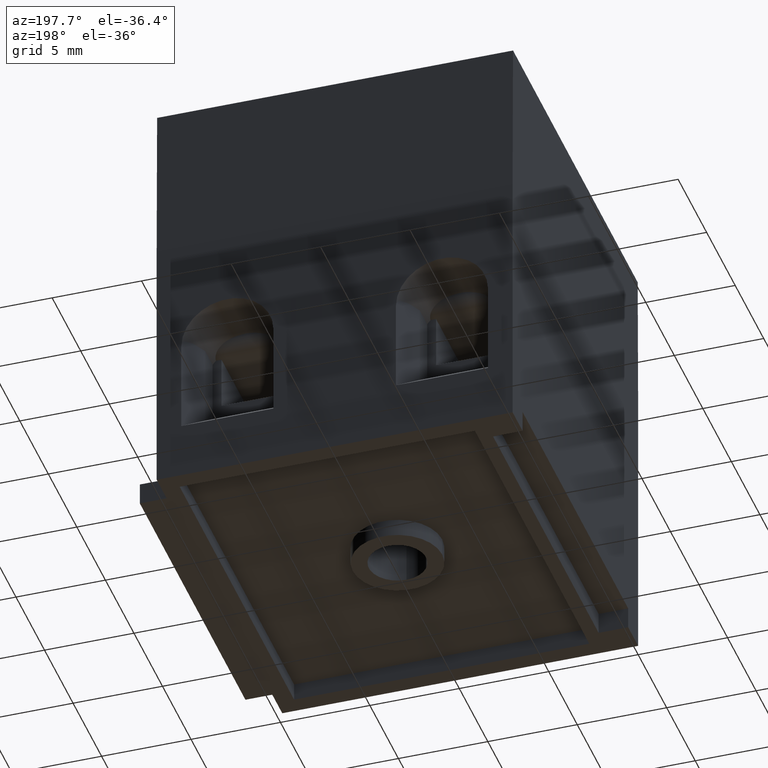
[diagram: clean part render]
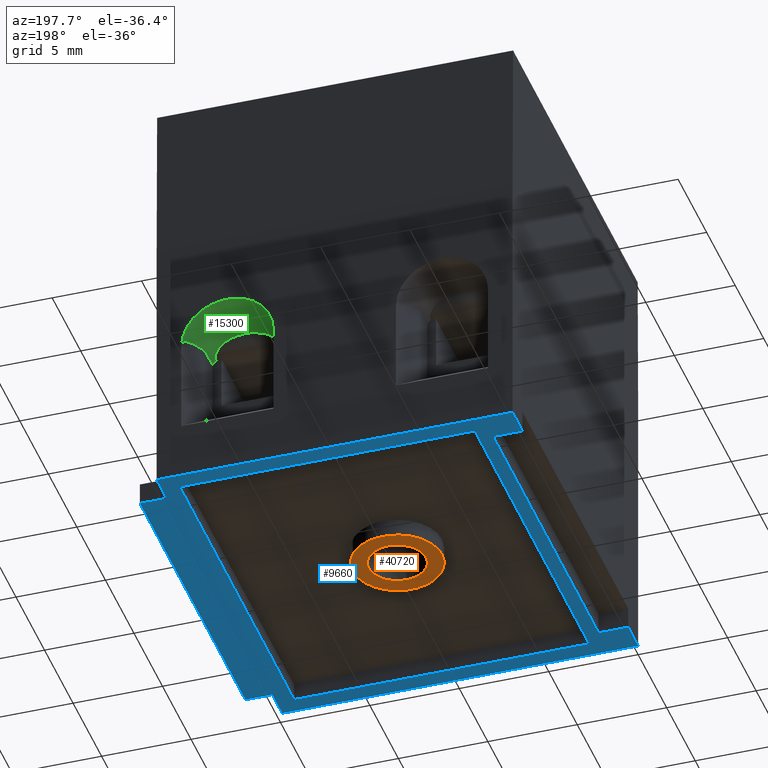
[diagram: same view with three faces highlighted in distinct colors, each labeled with its STEP entity id]
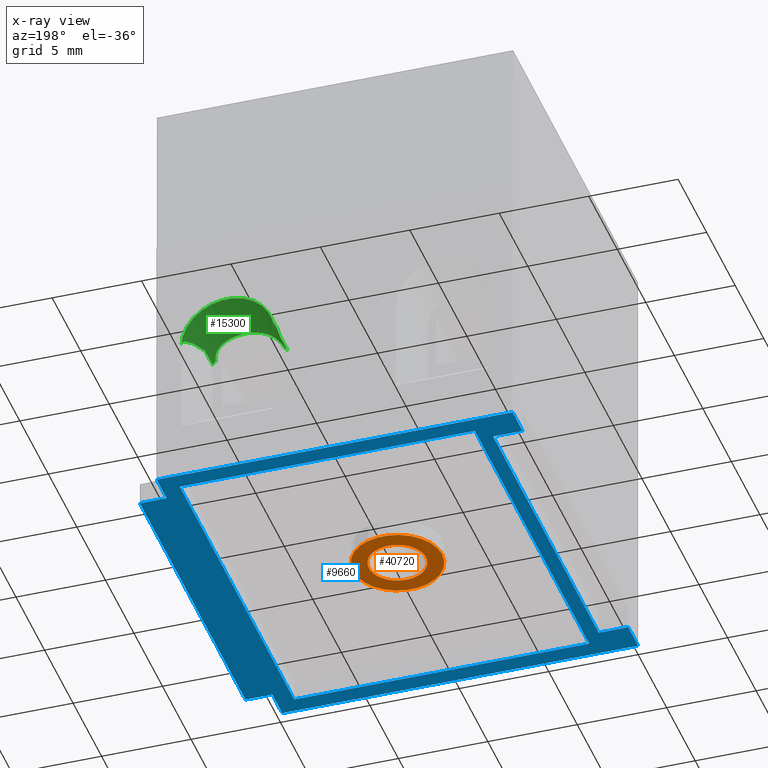
[diagram: x-ray of the same camera — body ghosted, the three highlighted faces saturated]
A machine part, auxiliary view with three faces highlighted in distinct colors.
The next image is the same camera in x-ray (body ghosted, the three faces saturated) — at least one of them is partly hidden behind the body in this view.
Their STEP definitions:

[orange] entity #40720 — the highlighted planar face has unit normal (0, 0, 1).
#8700=CARTESIAN_POINT('',(60.404081,0.156191,19.95));
#8710=DIRECTION('',(1.11022302462516E-16,1.,0.));
#8720=DIRECTION('',(1.,-1.11022302462516E-16,0.));
#8730=AXIS2_PLACEMENT_3D('',#8700,#8710,#8720);
#8740=PLANE('',#8730);
#40220=CARTESIAN_POINT('',(47.804081,0.156191000000002,10.0000000000001)
);
#40230=VERTEX_POINT('',#40220);
#40260=CARTESIAN_POINT('',(49.404081,0.156191000000002,10.0000000000001)
);
#40270=DIRECTION('',(-1.11022302462516E-16,-1.,-4.62223186652936E-33));
#40280=DIRECTION('',(-1.,1.11022302462516E-16,-4.16333634234434E-17));
#40290=AXIS2_PLACEMENT_3D('',#40260,#40270,#40280);
#40300=CIRCLE('',#40290,1.6);
#40310=CARTESIAN_POINT('',(51.004081,0.156191000000001,10.0000000000001)
);
#40320=VERTEX_POINT('',#40310);
#40330=EDGE_CURVE('',#40320,#40230,#40300,.T.);
#40520=CARTESIAN_POINT('',(49.404081,0.156191000000002,10.));
#40530=DIRECTION('',(1.11022302462516E-16,1.,4.62223186652936E-33));
#40540=DIRECTION('',(-4.16333634234434E-17,-1.3684555315672E-48,1.));
#40550=AXIS2_PLACEMENT_3D('',#40520,#40530,#40540);
#40560=CIRCLE('',#40550,2.5);
#40570=CARTESIAN_POINT('',(49.404081,0.156191000000002,12.5));
#40580=VERTEX_POINT('',#40570);
#40590=CARTESIAN_POINT('',(49.404081,0.156191000000002,7.50000000000005)
);
#40600=VERTEX_POINT('',#40590);
#40610=EDGE_CURVE('',#40580,#40600,#40560,.T.);
#40620=ORIENTED_EDGE('',*,*,#40610,.F.);
#40630=EDGE_CURVE('',#40600,#40580,#40560,.T.);
#40640=ORIENTED_EDGE('',*,*,#40630,.F.);
#40650=EDGE_LOOP('',(#40640,#40620));
#40660=FACE_OUTER_BOUND('',#40650,.T.);
#40670=EDGE_CURVE('',#40230,#40320,#40300,.T.);
#40680=ORIENTED_EDGE('',*,*,#40670,.F.);
#40690=ORIENTED_EDGE('',*,*,#40330,.F.);
#40700=EDGE_LOOP('',(#40690,#40680));
#40710=FACE_BOUND('',#40700,.T.);
#40720=ADVANCED_FACE('',(#40660,#40710),#8740,.F.);

[blue] entity #9660 — the highlighted planar face has unit normal (0, 0, 1).
#60=CARTESIAN_POINT('',(49.7916584671174,0.156191000000002,
0.0499999999999936));
#70=DIRECTION('',(-1.,1.11022302462516E-16,0.));
#80=VECTOR('',#70,1.);
#90=LINE('',#60,#80);
#100=CARTESIAN_POINT('',(40.154081,0.156191000000003,0.0499999999999936)
);
#110=VERTEX_POINT('',#100);
#120=CARTESIAN_POINT('',(38.4040807462834,0.156191000000002,
0.0499999999999936));
#130=VERTEX_POINT('',#120);
#140=EDGE_CURVE('',#110,#130,#90,.T.);
#360=CARTESIAN_POINT('',(58.654081,0.156191,0.0499999999999936));
#370=VERTEX_POINT('',#360);
#400=CARTESIAN_POINT('',(60.404081,0.156191,0.0499999999999936));
#410=VERTEX_POINT('',#400);
#420=EDGE_CURVE('',#410,#370,#90,.T.);
#1010=CARTESIAN_POINT('',(38.4040807462834,0.156191000000002,19.95));
#1020=VERTEX_POINT('',#1010);
#1350=CARTESIAN_POINT('',(60.404081,0.156191,19.95));
#1360=VERTEX_POINT('',#1350);
#1390=CARTESIAN_POINT('',(49.7916584671174,0.156191000000002,19.95));
#1400=DIRECTION('',(-1.,1.11022302462516E-16,0.));
#1410=VECTOR('',#1400,1.);
#1420=LINE('',#1390,#1410);
#1430=CARTESIAN_POINT('',(58.654081,0.156191,19.95));
#1440=VERTEX_POINT('',#1430);
#1450=EDGE_CURVE('',#1360,#1440,#1420,.T.);
#1670=CARTESIAN_POINT('',(40.154081,0.156191000000002,19.95));
#1680=VERTEX_POINT('',#1670);
#1710=EDGE_CURVE('',#1680,#1020,#1420,.T.);
#8470=CARTESIAN_POINT('',(38.4040807462834,0.156191000000003,19.95));
#8480=DIRECTION('',(0.,0.,-1.));
#8490=VECTOR('',#8480,1.);
#8500=LINE('',#8470,#8490);
#8510=EDGE_CURVE('',#1020,#130,#8500,.T.);
#8700=CARTESIAN_POINT('',(60.404081,0.156191,19.95));
#8710=DIRECTION('',(1.11022302462516E-16,1.,0.));
#8720=DIRECTION('',(1.,-1.11022302462516E-16,0.));
#8730=AXIS2_PLACEMENT_3D('',#8700,#8710,#8720);
#8740=PLANE('',#8730);
#8750=CARTESIAN_POINT('',(59.4302669215692,0.156190999999998,19.95));
#8760=DIRECTION('',(-4.16333634234434E-17,3.08148791101958E-33,1.));
#8770=VECTOR('',#8760,1.);
#8780=LINE('',#8750,#8770);
#8790=CARTESIAN_POINT('',(59.4302669215692,0.156191,2.47381407843087));
#8800=VERTEX_POINT('',#8790);
#8810=CARTESIAN_POINT('',(59.4302669215692,0.156190999999998,
18.9761859215692));
#8820=VERTEX_POINT('',#8810);
#8830=EDGE_CURVE('',#8800,#8820,#8780,.T.);
#8840=ORIENTED_EDGE('',*,*,#8830,.F.);
#8850=CARTESIAN_POINT('',(49.404081,0.156191000000002,18.9761859215692))
;
#8860=DIRECTION('',(-1.,1.11022302462516E-16,-4.16333634234434E-17));
#8870=VECTOR('',#8860,1.);
#8880=LINE('',#8850,#8870);
#8890=CARTESIAN_POINT('',(39.3778950784308,0.156191000000002,
18.9761859215692));
#8900=VERTEX_POINT('',#8890);
#8910=EDGE_CURVE('',#8820,#8900,#8880,.T.);
#8920=ORIENTED_EDGE('',*,*,#8910,.F.);
#8930=CARTESIAN_POINT('',(39.3778950784308,0.156191000000002,19.95));
#8940=DIRECTION('',(4.16333634234434E-17,-3.08148791101958E-33,-1.));
#8950=VECTOR('',#8940,1.);
#8960=LINE('',#8930,#8950);
#8970=CARTESIAN_POINT('',(39.3778950784308,0.156191000000002,
2.47381407843086));
#8980=VERTEX_POINT('',#8970);
#8990=EDGE_CURVE('',#8900,#8980,#8960,.T.);
#9000=ORIENTED_EDGE('',*,*,#8990,.F.);
#9010=CARTESIAN_POINT('',(49.404081,0.156191000000002,2.47381407843087))
;
#9020=DIRECTION('',(1.,-1.11022302462516E-16,4.16333634234433E-17));
#9030=VECTOR('',#9020,1.);
#9040=LINE('',#9010,#9030);
#9050=EDGE_CURVE('',#8980,#8800,#9040,.T.);
#9060=ORIENTED_EDGE('',*,*,#9050,.F.);
#9070=EDGE_LOOP('',(#9060,#9000,#8920,#8840));
#9080=FACE_BOUND('',#9070,.T.);
#9090=ORIENTED_EDGE('',*,*,#1710,.T.);
#9100=CARTESIAN_POINT('',(40.154081,0.156191000000002,21.45));
#9110=DIRECTION('',(0.,0.,-1.));
#9120=VECTOR('',#9110,1.);
#9130=LINE('',#9100,#9120);
#9140=CARTESIAN_POINT('',(40.154081,0.156191000000002,21.45));
#9150=VERTEX_POINT('',#9140);
#9160=EDGE_CURVE('',#9150,#1680,#9130,.T.);
#9170=ORIENTED_EDGE('',*,*,#9160,.T.);
#9180=CARTESIAN_POINT('',(92.1701858007928,0.156190999999996,21.45));
#9190=DIRECTION('',(-1.,1.11022302462516E-16,0.));
#9200=VECTOR('',#9190,1.);
#9210=LINE('',#9180,#9200);
#9220=CARTESIAN_POINT('',(58.654081,0.156191,21.45));
#9230=VERTEX_POINT('',#9220);
#9240=EDGE_CURVE('',#9230,#9150,#9210,.T.);
#9250=ORIENTED_EDGE('',*,*,#9240,.T.);
#9260=CARTESIAN_POINT('',(58.654081,0.156191,21.45));
#9270=DIRECTION('',(0.,0.,-1.));
#9280=VECTOR('',#9270,1.);
#9290=LINE('',#9260,#9280);
#9300=EDGE_CURVE('',#9230,#1440,#9290,.T.);
#9310=ORIENTED_EDGE('',*,*,#9300,.F.);
#9320=ORIENTED_EDGE('',*,*,#1450,.T.);
#9330=CARTESIAN_POINT('',(60.404081,0.156191,19.95));
#9340=DIRECTION('',(0.,0.,-1.));
#9350=VECTOR('',#9340,1.);
#9360=LINE('',#9330,#9350);
#9370=EDGE_CURVE('',#1360,#410,#9360,.T.);
#9380=ORIENTED_EDGE('',*,*,#9370,.F.);
#9390=ORIENTED_EDGE('',*,*,#420,.F.);
#9400=CARTESIAN_POINT('',(58.654081,0.156191,19.95));
#9410=DIRECTION('',(0.,0.,1.));
#9420=VECTOR('',#9410,1.);
#9430=LINE('',#9400,#9420);
#9440=CARTESIAN_POINT('',(58.654081,0.156191,1.70000000000001));
#9450=VERTEX_POINT('',#9440);
#9460=EDGE_CURVE('',#370,#9450,#9430,.T.);
#9470=ORIENTED_EDGE('',*,*,#9460,.F.);
#9480=CARTESIAN_POINT('',(49.404081,0.156191000000002,1.70000000000001))
;
#9490=DIRECTION('',(1.,-1.11022302462516E-16,0.));
#9500=VECTOR('',#9490,1.);
#9510=LINE('',#9480,#9500);
#9520=CARTESIAN_POINT('',(40.154081,0.156191000000003,1.70000000000001))
;
#9530=VERTEX_POINT('',#9520);
#9540=EDGE_CURVE('',#9530,#9450,#9510,.T.);
#9550=ORIENTED_EDGE('',*,*,#9540,.T.);
#9560=CARTESIAN_POINT('',(40.154081,0.156191000000003,19.95));
#9570=DIRECTION('',(0.,0.,-1.));
#9580=VECTOR('',#9570,1.);
#9590=LINE('',#9560,#9580);
#9600=EDGE_CURVE('',#9530,#110,#9590,.T.);
#9610=ORIENTED_EDGE('',*,*,#9600,.F.);
#9620=ORIENTED_EDGE('',*,*,#140,.F.);
#9630=ORIENTED_EDGE('',*,*,#8510,.T.);
#9640=EDGE_LOOP('',(#9630,#9620,#9610,#9550,#9470,#9390,#9380,#9320,
#9310,#9250,#9170,#9090));
#9650=FACE_OUTER_BOUND('',#9640,.T.);
#9660=ADVANCED_FACE('',(#9080,#9650),#8740,.F.);

[green] entity #15300 — the highlighted cylindrical surface (partial cylindrical patch) has radius 2.575 mm, axis along (0, -1, 0).
#10900=CARTESIAN_POINT('',(60.404081,8.65751798070847,18.575));
#10910=VERTEX_POINT('',#10900);
#11060=CARTESIAN_POINT('',(60.404081,8.65751798070847,13.425));
#11070=VERTEX_POINT('',#11060);
#11100=CARTESIAN_POINT('',(60.404081,8.65751798070847,16.));
#11110=DIRECTION('',(-1.,0.,0.));
#11120=DIRECTION('',(0.,0.,-1.));
#11130=AXIS2_PLACEMENT_3D('',#11100,#11110,#11120);
#11140=CIRCLE('',#11130,2.57499999999999);
#11150=EDGE_CURVE('',#10910,#11070,#11140,.T.);
#11780=CARTESIAN_POINT('',(45.8005303144844,8.65751798070847,16.));
#11790=DIRECTION('',(-0.17364817766693,0.,0.984807753012208));
#11800=DIRECTION('',(0.984807753012208,0.,0.17364817766693));
#11810=AXIS2_PLACEMENT_3D('',#11780,#11790,#11800);
#11820=ELLIPSE('',#11810,14.8288339940948,2.57499999999999);
#11830=CARTESIAN_POINT('',(57.7102221356815,10.1476941447911,18.1));
#11840=VERTEX_POINT('',#11830);
#11850=EDGE_CURVE('',#10910,#11840,#11820,.T.);
#12480=CARTESIAN_POINT('',(45.8005303144844,8.65751798070847,16.));
#12490=DIRECTION('',(0.17364817766693,0.,0.984807753012208));
#12500=DIRECTION('',(0.984807753012208,0.,-0.17364817766693));
#12510=AXIS2_PLACEMENT_3D('',#12480,#12490,#12500);
#12520=ELLIPSE('',#12510,14.8288339940948,2.57499999999999);
#12530=CARTESIAN_POINT('',(57.7102221356816,10.1476941447911,13.9));
#12540=VERTEX_POINT('',#12530);
#12550=EDGE_CURVE('',#11070,#12540,#12520,.T.);
#12750=CARTESIAN_POINT('',(60.404081,8.65751798070847,16.));
#12760=DIRECTION('',(-1.,0.,0.));
#12770=DIRECTION('',(0.,0.,-1.));
#12780=AXIS2_PLACEMENT_3D('',#12750,#12760,#12770);
#12790=CYLINDRICAL_SURFACE('',#12780,2.57499999999999);
#12800=CARTESIAN_POINT('',(56.354081,11.1793287549614,16.));
#12810=DIRECTION('',(3.44892722976232E-15,0.,-1.));
#12820=DIRECTION('',(-1.,0.,-3.44892722976232E-15));
#12830=AXIS2_PLACEMENT_3D('',#12800,#12810,#12820);
#12840=CYLINDRICAL_SURFACE('',#12830,0.800000000000001);
#12850=CARTESIAN_POINT('',(57.154081,11.1793287549614,16.5206682426092))
;
#12860=CARTESIAN_POINT('',(57.154081,11.1837366377855,16.4993190503833))
;
#12870=CARTESIAN_POINT('',(57.1540447072863,11.1878703751275,
16.4779283114559));
#12880=CARTESIAN_POINT('',(57.1539848910586,11.1917289593654,
16.4565081769857));
#12890=CARTESIAN_POINT('',(57.1539250874562,11.1955867291848,
16.4350925635916));
#12900=CARTESIAN_POINT('',(57.1538416477542,11.199176484276,
16.413608842397));
#12910=CARTESIAN_POINT('',(57.1537454892324,11.2024956421225,
16.3920633914348));
#12920=CARTESIAN_POINT('',(57.1535531745922,11.2091338748482,
16.3489730280724));
#12930=CARTESIAN_POINT('',(57.1533116017036,11.2146884290971,
16.305640166577));
#12940=CARTESIAN_POINT('',(57.1530898261341,11.2191395042607,
16.2621453224335));
#12950=CARTESIAN_POINT('',(57.1528680510169,11.2235905703463,
16.2186505669989));
#12960=CARTESIAN_POINT('',(57.1526662221688,11.2269380514238,
16.1749944773527));
#12970=CARTESIAN_POINT('',(57.1525268806131,11.2291702610771,
16.1312613761724));
#12980=CARTESIAN_POINT('',(57.1523875391732,11.2314024688778,
16.0875283112879));
#12990=CARTESIAN_POINT('',(57.1523107668274,11.2325193495488,
16.0437189814536));
#13000=CARTESIAN_POINT('',(57.1523108581226,11.2325179794486,
15.9999194510077));
#13010=CARTESIAN_POINT('',(57.1523109494178,11.2325166093479,
15.9561199025114));
#13020=CARTESIAN_POINT('',(57.152387895257,11.2313969949483,
15.9123309416493));
#13030=CARTESIAN_POINT('',(57.1525272009373,11.2291651293155,
15.8686381217349));
#13040=CARTESIAN_POINT('',(57.1526665068713,11.2269332596179,
15.8249452222445));
#13050=CARTESIAN_POINT('',(57.1528680741815,11.2235892113222,
15.7813492277402));
#13060=CARTESIAN_POINT('',(57.1530894281517,11.2191474910353,
15.7379327341639));
#13070=CARTESIAN_POINT('',(57.1533108477627,11.2147044535922,
15.6945033657788));
#13080=CARTESIAN_POINT('',(57.1535516558213,11.2091715152921,
15.6513090040395));
#13090=CARTESIAN_POINT('',(57.1537439967809,11.2025471007099,
15.6082707844126));
#13100=CARTESIAN_POINT('',(57.153936474473,11.1959179769258,
15.565201969529));
#13110=CARTESIAN_POINT('',(57.1540810000001,11.1881771017332,
15.5221879456451));
#13120=CARTESIAN_POINT('',(57.1540810000001,11.1793287549614,
15.4793317573908));
#13130=B_SPLINE_CURVE_WITH_KNOTS('',3,(#12850,#12860,#12870,#12880,
#12890,#12900,#12910,#12920,#12930,#12940,#12950,#12960,#12970,#12980,
#12990,#13000,#13010,#13020,#13030,#13040,#13050,#13060,#13070,#13080,
#13090,#13100,#13110,#13120),.UNSPECIFIED.,.F.,.F.,(4,3,3,3,3,3,3,3,3,4)
,(0.,0.0653492173987913,0.130689398047593,0.261685022357758,
0.392968221668058,0.524367293166116,0.655705900215617,0.786810000849483,
0.917545972419453,1.04857348763316),.UNSPECIFIED.);
#13140=SURFACE_CURVE('',#13130,(#12790,#12840),.CURVE_3D.);
#13150=CARTESIAN_POINT('',(57.154081,11.1793287549614,16.5206682426092))
;
#13160=VERTEX_POINT('',#13150);
#13170=CARTESIAN_POINT('',(57.154081,11.1793287549614,15.4793317573908))
;
#13180=VERTEX_POINT('',#13170);
#13190=EDGE_CURVE('',#13160,#13180,#13140,.T.);
#13200=ORIENTED_EDGE('',*,*,#13190,.T.);
#13210=CARTESIAN_POINT('',(56.404081,10.3808927838278,17.9132705736443))
;
#13220=CARTESIAN_POINT('',(56.4135692186894,10.3814869591301,
17.9127353713793));
#13230=CARTESIAN_POINT('',(56.4229977295525,10.3822464989184,
17.9120507573723));
#13240=CARTESIAN_POINT('',(56.4324199884119,10.3831736175073,
17.9112136518936));
#13250=CARTESIAN_POINT('',(56.4418429532056,10.3841008055578,
17.9103764836973));
#13260=CARTESIAN_POINT('',(56.4512538403485,10.3851958270849,
17.9093865915302));
#13270=CARTESIAN_POINT('',(56.4606387853886,10.3864571144211,
17.9082438187813));
#13280=CARTESIAN_POINT('',(56.4785328501298,10.3888619827666,
17.9060649195478));
#13290=CARTESIAN_POINT('',(56.4963315431997,10.3918723766231,
17.9033295821574));
#13300=CARTESIAN_POINT('',(56.5139348895336,10.3954622267814,
17.9000459987963));
#13310=CARTESIAN_POINT('',(56.5315381152369,10.3990520523395,
17.8967624379367));
#13320=CARTESIAN_POINT('',(56.5489429520399,10.4032207443429,
17.892931047424));
#13330=CARTESIAN_POINT('',(56.5660520718812,10.4079220757801,
17.8885736691897));
#13340=CARTESIAN_POINT('',(56.5831613027906,10.4126234377372,
17.8842162626684));
#13350=CARTESIAN_POINT('',(56.5999719832796,10.4178565134608,
17.8793335598289));
#13360=CARTESIAN_POINT('',(56.6163988681358,10.4235580648333,
17.873960357442));
#13370=CARTESIAN_POINT('',(56.6328363003603,10.4292632770558,
17.8685837050313));
#13380=CARTESIAN_POINT('',(56.6488440828912,10.4354184431455,
17.8627340964681));
#13390=CARTESIAN_POINT('',(56.6644804690675,10.4420010329798,
17.8564065384921));
#13400=CARTESIAN_POINT('',(56.6801305302538,10.4485893797058,
17.8500734466659));
#13410=CARTESIAN_POINT('',(56.6954460719313,10.4556243278749,
17.8432436415277));
#13420=CARTESIAN_POINT('',(56.7103800917869,10.4630529999668,
17.835937987579));
#13430=CARTESIAN_POINT('',(56.7253139603026,10.4704815967773,
17.828632407665));
#13440=CARTESIAN_POINT('',(56.7398648950755,10.4783032713641,
17.8208514592593));
#13450=CARTESIAN_POINT('',(56.7539888949649,10.4864552632236,
17.8126261105503));
#13460=CARTESIAN_POINT('',(56.7681128614347,10.4946072357941,
17.8044007813037));
#13470=CARTESIAN_POINT('',(56.7818086224925,10.5030887302448,
17.7957316949474));
#13480=CARTESIAN_POINT('',(56.7950404842566,10.5118298910993,
17.7866595475957));
#13490=CARTESIAN_POINT('',(56.8082724039512,10.5205710902236,
17.7775873605251));
#13500=CARTESIAN_POINT('',(56.8210393976306,10.5295711240424,
17.7681128337051));
#13510=CARTESIAN_POINT('',(56.833317365778,10.5387567404934,
17.7582848826886));
#13520=CARTESIAN_POINT('',(56.8472090321135,10.5491496261313,
17.7471652402003));
#13530=CARTESIAN_POINT('',(56.8604588761301,10.5597667300057,
17.7356075694962));
#13540=CARTESIAN_POINT('',(56.8730934866961,10.5705381188199,
17.7236527931054));
#13550=CARTESIAN_POINT('',(56.8857423016128,10.581321617274,
17.7116845766615));
#13560=CARTESIAN_POINT('',(56.8978351919604,10.5923120411252,
17.6992604005935));
#13570=CARTESIAN_POINT('',(56.9093808080574,10.6034449791802,
17.6864142778956));
#13580=CARTESIAN_POINT('',(56.920926373772,10.6145778686535,
17.6735682112554));
#13590=CARTESIAN_POINT('',(56.9319242427828,10.6258529110481,
17.6603005058047));
#13600=CARTESIAN_POINT('',(56.9423856725446,10.6372055104292,
17.6466518407569));
#13610=CARTESIAN_POINT('',(56.9528470850257,10.6485580910575,
17.6330031982548));
#13620=CARTESIAN_POINT('',(56.9627717139096,10.6599878230685,
17.6189739916652));
#13630=CARTESIAN_POINT('',(56.9721752869529,10.671431666531,
17.6046110637961));
#13640=CARTESIAN_POINT('',(56.981578868034,10.682875519775,
17.5902481236501));
#13650=CARTESIAN_POINT('',(56.9904611494312,10.6943330979621,
17.5755518810738));
#13660=CARTESIAN_POINT('',(56.9988430915277,10.7057447124422,
17.5605743351123));
#13670=CARTESIAN_POINT('',(57.007225059778,10.7171563625296,
17.5455967424169));
#13680=CARTESIAN_POINT('',(57.015106538357,10.728521714793,
17.5303382496019));
#13690=CARTESIAN_POINT('',(57.0225136366678,10.739786026388,
17.5148547078675));
#13700=CARTESIAN_POINT('',(57.029922880143,10.7510536002321,
17.4993666819558));
#13710=CARTESIAN_POINT('',(57.0368448385935,10.7621971820817,
17.4836872856375));
#13720=CARTESIAN_POINT('',(57.0433688252415,10.7732717466792,
17.4677230671289));
#13730=CARTESIAN_POINT('',(57.0498903338344,10.7843421047413,
17.4517649124299));
#13740=CARTESIAN_POINT('',(57.055998546119,10.7953203476179,
17.4355536425563));
#13750=CARTESIAN_POINT('',(57.0617244947571,10.8061790740552,
17.4191125769225));
#13760=CARTESIAN_POINT('',(57.0674504428642,10.8170377994853,
17.4026715128136));
#13770=CARTESIAN_POINT('',(57.0727941008249,10.8277769971715,
17.3860006653474));
#13780=CARTESIAN_POINT('',(57.0777855077725,10.8383715941572,
17.3691247265294));
#13790=CARTESIAN_POINT('',(57.0827769143442,10.8489661903451,
17.3522487889823));
#13800=CARTESIAN_POINT('',(57.0874160485242,10.8594161597835,
17.3351677979632));
#13810=CARTESIAN_POINT('',(57.0917321995767,10.8696988019185,
17.3179078170849));
#13820=CARTESIAN_POINT('',(57.0960483512298,10.8799814454844,
17.3006478338046));
#13830=CARTESIAN_POINT('',(57.1000415056582,10.8900967297699,
17.2832089135978));
#13840=CARTESIAN_POINT('',(57.1037403175871,10.9000244270869,
17.2656183618949));
#13850=CARTESIAN_POINT('',(57.1074391313093,10.9099521292175,
17.2480278016629));
#13860=CARTESIAN_POINT('',(57.1108435955749,10.9196922113415,
17.2302856721182));
#13870=CARTESIAN_POINT('',(57.1139817375322,10.9292270374582,
17.2124202907743));
#13880=CARTESIAN_POINT('',(57.1202536939332,10.9482835411179,
17.176714164538));
#13890=CARTESIAN_POINT('',(57.1254819323556,10.9665713798805,
17.1404218359938));
#13900=CARTESIAN_POINT('',(57.1298830037641,10.9840565066563,
17.1035594625041));
#13910=CARTESIAN_POINT('',(57.1342834170612,11.0015390188052,
17.066702601205));
#13920=CARTESIAN_POINT('',(57.1378525014445,11.0182067871297,
17.029299119337));
#13930=CARTESIAN_POINT('',(57.140770646801,11.0340036035635,
16.9914338527456));
#13940=CARTESIAN_POINT('',(57.1436887947576,11.049800434072,
16.9535685524172));
#13950=CARTESIAN_POINT('',(57.1459558413045,11.0647264413166,
16.9152412284125));
#13960=CARTESIAN_POINT('',(57.1477316393395,11.0787371912647,
16.8765400928866));
#13970=CARTESIAN_POINT('',(57.1495074368688,11.0927479372223,
16.8378389683835));
#13980=CARTESIAN_POINT('',(57.1507919387804,11.1058433744541,
16.7987641755415));
#13990=CARTESIAN_POINT('',(57.1517260325283,11.117990332372,
16.759408195044));
#14000=CARTESIAN_POINT('',(57.1526601267837,11.1301372968891,
16.720052193165));
#14010=CARTESIAN_POINT('',(57.1532438541734,11.1413356532856,
16.6804154465814));
#14020=CARTESIAN_POINT('',(57.1535990504651,11.1515639034288,
16.6405934243825));
#14030=CARTESIAN_POINT('',(57.1539542479039,11.1617921866053,
16.6007712735739));
#14040=CARTESIAN_POINT('',(57.154081,11.1710502280924,16.5607645583526))
;
#14050=CARTESIAN_POINT('',(57.154081,11.1793287549614,16.5206682426092))
;
#14060=B_SPLINE_CURVE_WITH_KNOTS('',3,(#13210,#13220,#13230,#13240,
#13250,#13260,#13270,#13280,#13290,#13300,#13310,#13320,#13330,#13340,
#13350,#13360,#13370,#13380,#13390,#13400,#13410,#13420,#13430,#13440,
#13450,#13460,#13470,#13480,#13490,#13500,#13510,#13520,#13530,#13540,
#13550,#13560,#13570,#13580,#13590,#13600,#13610,#13620,#13630,#13640,
#13650,#13660,#13670,#13680,#13690,#13700,#13710,#13720,#13730,#13740,
#13750,#13760,#13770,#13780,#13790,#13800,#13810,#13820,#13830,#13840,
#13850,#13860,#13870,#13880,#13890,#13900,#13910,#13920,#13930,#13940,
#13950,#13960,#13970,#13980,#13990,#14000,#14010,#14020,#14030,#14040,
#14050),.UNSPECIFIED.,.F.,.F.,(4,3,3,3,3,3,3,3,3,3,3,3,3,3,3,3,3,3,3,3,3
,3,3,3,3,3,3,3,4),(0.,0.0285076411258406,0.0570743323323725,
0.111762541367919,0.16658078105932,0.221304674230262,0.275727516639739,
0.330230186155927,0.384950884487337,0.439766605332494,0.494507395720553,
0.556097791140417,0.617643851626254,0.679381562157261,0.741248403812681,
0.803126167089595,0.864853850070786,0.926322594423086,0.987832635221374,
1.04942563979107,1.11106654856045,1.17269842188388,1.23424613396577,
1.35719032130532,1.48043779858876,1.60394495947133,1.72755768346629,
1.85105187107277,1.97416218477534),.UNSPECIFIED.);
#14070=SURFACE_CURVE('',#14060,(#12790,#12840),.CURVE_3D.);
#14080=CARTESIAN_POINT('',(56.404081,10.3808927838278,17.9132705736443))
;
#14090=VERTEX_POINT('',#14080);
#14100=EDGE_CURVE('',#14090,#13160,#14070,.T.);
#14110=ORIENTED_EDGE('',*,*,#14100,.T.);
#14120=CARTESIAN_POINT('',(56.404081,8.65751798070847,16.));
#14130=DIRECTION('',(-1.,0.,0.));
#14140=DIRECTION('',(0.,0.,-1.));
#14150=AXIS2_PLACEMENT_3D('',#14120,#14130,#14140);
#14160=CIRCLE('',#14150,2.57499999999999);
#14170=CARTESIAN_POINT('',(56.404081,10.1476941447911,18.1));
#14180=VERTEX_POINT('',#14170);
#14190=EDGE_CURVE('',#14180,#14090,#14160,.T.);
#14200=ORIENTED_EDGE('',*,*,#14190,.T.);
#14210=CARTESIAN_POINT('',(60.404081,10.1476941447911,18.1));
#14220=DIRECTION('',(-1.,0.,0.));
#14230=VECTOR('',#14220,1.);
#14240=LINE('',#14210,#14230);
#14250=EDGE_CURVE('',#11840,#14180,#14240,.T.);
#14260=ORIENTED_EDGE('',*,*,#14250,.T.);
#14270=ORIENTED_EDGE('',*,*,#11850,.T.);
#14280=ORIENTED_EDGE('',*,*,#11150,.F.);
#14290=ORIENTED_EDGE('',*,*,#12550,.F.);
#14300=CARTESIAN_POINT('',(60.404081,10.1476941447911,13.9));
#14310=DIRECTION('',(-1.,0.,0.));
#14320=VECTOR('',#14310,1.);
#14330=LINE('',#14300,#14320);
#14340=CARTESIAN_POINT('',(56.404081,10.1476941447911,13.9));
#14350=VERTEX_POINT('',#14340);
#14360=EDGE_CURVE('',#12540,#14350,#14330,.T.);
#14370=ORIENTED_EDGE('',*,*,#14360,.F.);
#14380=CARTESIAN_POINT('',(56.404081,10.3808927838278,14.0867294263557))
;
#14390=VERTEX_POINT('',#14380);
#14400=EDGE_CURVE('',#14390,#14350,#14160,.T.);
#14410=ORIENTED_EDGE('',*,*,#14400,.T.);
#14420=CARTESIAN_POINT('',(57.1540810000001,11.1793287549614,
15.4793317573908));
#14430=CARTESIAN_POINT('',(57.1540810000001,11.1709987911883,
15.4389863115327));
#14440=CARTESIAN_POINT('',(57.1539525510792,11.1616921114675,
15.3988033230961));
#14450=CARTESIAN_POINT('',(57.1535942020646,11.1514246383268,
15.3588646140736));
#14460=CARTESIAN_POINT('',(57.1532358529866,11.141157163365,
15.3189258979674));
#14470=CARTESIAN_POINT('',(57.1526475360506,11.129928990199,
15.2792318030663));
#14480=CARTESIAN_POINT('',(57.1517086563937,11.1177647901967,
15.2398614360505));
#14490=CARTESIAN_POINT('',(57.1507697762956,11.105600584478,
15.2004910505328));
#14500=CARTESIAN_POINT('',(57.1494803250167,11.0925003909255,
15.1614444990695));
#14510=CARTESIAN_POINT('',(57.1477012010148,11.078497328597,
15.1227976304763));
#14520=CARTESIAN_POINT('',(57.1459220781518,11.064494275233,
15.0841507866245));
#14530=CARTESIAN_POINT('',(57.143653359738,11.0495882754017,
15.0459034669095));
#14540=CARTESIAN_POINT('',(57.1407369461582,11.0338212899496,
15.008129251117));
#14550=CARTESIAN_POINT('',(57.1378202558653,11.0180528085054,
14.9703514512578));
#14560=CARTESIAN_POINT('',(57.1342577582936,11.0014303154162,
14.9330621030228));
#14570=CARTESIAN_POINT('',(57.1298650449691,10.9839851715722,
14.8962901604885));
#14580=CARTESIAN_POINT('',(57.1254694752846,10.9665286840303,
14.859494307013));
#14590=CARTESIAN_POINT('',(57.1202279079247,10.9481927167869,
14.8231051877352));
#14600=CARTESIAN_POINT('',(57.1139330564092,10.9290791747585,
14.7873026998856));
#14610=CARTESIAN_POINT('',(57.1076382168113,10.9099656689164,
14.7515002798183));
#14620=CARTESIAN_POINT('',(57.1002903278966,10.8900750283851,
14.7162853883139));
#14630=CARTESIAN_POINT('',(57.0916654813921,10.8695399029449,
14.681825498816));
#14640=CARTESIAN_POINT('',(57.0830405231156,10.8490045113838,
14.6473651627423));
#14650=CARTESIAN_POINT('',(57.073139841363,10.8278260705065,
14.6136621039192));
#14660=CARTESIAN_POINT('',(57.061716378733,10.8061636832233,
14.5808641202955));
#14670=CARTESIAN_POINT('',(57.0560016741269,10.7953268513101,
14.5644565918466));
#14680=CARTESIAN_POINT('',(57.0498863452778,10.7843335411613,
14.5482216097192));
#14690=CARTESIAN_POINT('',(57.0433401060366,10.7732229992786,
14.5322066649321));
#14700=CARTESIAN_POINT('',(57.0367938817733,10.7621124828171,
14.5161917567875));
#14710=CARTESIAN_POINT('',(57.0298167956263,10.7508849037345,
14.5003971229829));
#14720=CARTESIAN_POINT('',(57.0223808702146,10.739584188797,
14.4848678918537));
#14730=CARTESIAN_POINT('',(57.0149449520925,10.7282834849378,
14.4693386759482));
#14740=CARTESIAN_POINT('',(57.007050284202,10.7169098428792,
14.4540751080993));
#14750=CARTESIAN_POINT('',(56.9986714373764,10.7055111022268,
14.4391191031301));
#14760=CARTESIAN_POINT('',(56.9902925876466,10.6941123576236,
14.424163092977));
#14770=CARTESIAN_POINT('',(56.9814296960974,10.6826887278212,
14.4095148820948));
#14780=CARTESIAN_POINT('',(56.9720597259961,10.6712910652019,
14.3952124862868));
#14790=CARTESIAN_POINT('',(56.9626897400806,10.659893383346,
14.3809100663396));
#14800=CARTESIAN_POINT('',(56.9528128572555,10.6485218707619,
14.3669536578694));
#14810=CARTESIAN_POINT('',(56.9424077363049,10.6372294546922,
14.3533769466622));
#14820=CARTESIAN_POINT('',(56.9372051758482,10.6315832466775,
14.3465885910829));
#14830=CARTESIAN_POINT('',(56.9318705879182,10.625956852439,
14.3398951063955));
#14840=CARTESIAN_POINT('',(56.9264013698145,10.6203570255372,
14.3333003017653));
#14850=CARTESIAN_POINT('',(56.9209348840255,10.6147599961999,
14.326708791771));
#14860=CARTESIAN_POINT('',(56.9153214372385,10.6091766627113,
14.3202007238054));
#14870=CARTESIAN_POINT('',(56.9095536305536,10.6036116745241,
14.313778088479));
#14880=CARTESIAN_POINT('',(56.8980191000094,10.5924827428991,
14.3009340235866));
#14890=CARTESIAN_POINT('',(56.8858756185121,10.5814364845795,
14.2884433121116));
#14900=CARTESIAN_POINT('',(56.8731269194785,10.5705666228341,
14.276378842975));
#14910=CARTESIAN_POINT('',(56.8603783154853,10.5596968421225,
14.2643144637781));
#14920=CARTESIAN_POINT('',(56.8470254582035,10.5490045627034,
14.2526773882029));
#14930=CARTESIAN_POINT('',(56.8330877593043,10.5385850272586,
14.2415314144129));
#14940=CARTESIAN_POINT('',(56.8207602347762,10.5293692248726,
14.231673096603));
#14950=CARTESIAN_POINT('',(56.8079762620599,10.520367515805,
14.2221994869999));
#14960=CARTESIAN_POINT('',(56.7947582547605,10.5116435318549,
14.2131470567978));
#14970=CARTESIAN_POINT('',(56.7815401828002,10.5029195052281,
14.2040945823124));
#14980=CARTESIAN_POINT('',(56.767888968392,10.4944738043899,
14.1954637762989));
#14990=CARTESIAN_POINT('',(56.7538324643783,10.4863649992508,
14.1872828177644));
#15000=CARTESIAN_POINT('',(56.7397740261868,10.4782550783384,
14.1791007335284));
#15010=CARTESIAN_POINT('',(56.725319387731,10.4704867273273,
14.1713730081285));
#15020=CARTESIAN_POINT('',(56.7104738039721,10.4630996231349,
14.1641078646793));
#15030=CARTESIAN_POINT('',(56.6956128984558,10.4557048948962,
14.1568352230563));
#15040=CARTESIAN_POINT('',(56.6802785494667,10.4486528946982,
14.1499877458568));
#15050=CARTESIAN_POINT('',(56.6645281941126,10.4420211260386,
14.1436127763024));
#15060=CARTESIAN_POINT('',(56.648778049476,10.4353894461027,
14.1372378920362));
#15070=CARTESIAN_POINT('',(56.6326139730282,10.4291791199689,
14.1313364131169));
#15080=CARTESIAN_POINT('',(56.6161105935982,10.4234580702018,
14.1259454115952));
#15090=CARTESIAN_POINT('',(56.599607245807,10.4177370314025,
14.1205544204087));
#15100=CARTESIAN_POINT('',(56.5827670557421,10.4125062283324,
14.1156746311728));
#15110=CARTESIAN_POINT('',(56.5656753579557,10.4078186593169,
14.1113304856426));
#15120=CARTESIAN_POINT('',(56.5485834852133,10.403131042318,
14.1069862956444));
#15130=CARTESIAN_POINT('',(56.5312427411508,10.3989873209334,
14.1031782174352));
#15140=CARTESIAN_POINT('',(56.5137404841086,10.3954226067943,
14.0999177621404));
#15150=CARTESIAN_POINT('',(56.5049890260378,10.3936401826048,
14.098287473102));
#15160=CARTESIAN_POINT('',(56.4961989734492,10.3920025543609,
14.0967941974604));
#15170=CARTESIAN_POINT('',(56.4873761741526,10.3905116680854,
14.0954376146968));
#15180=CARTESIAN_POINT('',(56.4785488148082,10.3890200112479,
14.0940803307858));
#15190=CARTESIAN_POINT('',(56.4696571758486,10.3876699979086,
14.0928551098438));
#15200=CARTESIAN_POINT('',(56.4607132867398,10.386467130575,
14.0917652562707));
#15210=CARTESIAN_POINT('',(56.4420225532528,10.3839534061226,
14.0894877053723));
#15220=CARTESIAN_POINT('',(56.4231042097317,10.3820840634307,
14.0878024691753));
#15230=CARTESIAN_POINT('',(56.404081,10.3808927838278,14.0867294263557))
;
#15240=B_SPLINE_CURVE_WITH_KNOTS('',3,(#14420,#14430,#14440,#14450,
#14460,#14470,#14480,#14490,#14500,#14510,#14520,#14530,#14540,#14550,
#14560,#14570,#14580,#14590,#14600,#14610,#14620,#14630,#14640,#14650,
#14660,#14670,#14680,#14690,#14700,#14710,#14720,#14730,#14740,#14750,
#14760,#14770,#14780,#14790,#14800,#14810,#14820,#14830,#14840,#14850,
#14860,#14870,#14880,#14890,#14900,#14910,#14920,#14930,#14940,#14950,
#14960,#14970,#14980,#14990,#15000,#15010,#15020,#15030,#15040,#15050,
#15060,#15070,#15080,#15090,#15100,#15110,#15120,#15130,#15140,#15150,
#15160,#15170,#15180,#15190,#15200,#15210,#15220,#15230),.UNSPECIFIED.,
.F.,.F.,(4,3,3,3,3,3,3,3,3,3,3,3,3,3,3,3,3,3,3,3,3,3,3,3,3,3,3,4),(0.,
0.123669903350528,0.247369099182648,0.370922257860559,0.494198993615391,
0.61713926854543,0.740233804490526,0.863413156645228,0.986358625981415,
1.04792979936307,1.10967618263339,1.17145793499778,1.23316726622212,
1.29473715605562,1.32546234474438,1.3562106605417,1.41801024990884,
1.47999530087773,1.53478517109428,1.58941356343535,1.64381772213821,
1.69837939650363,1.75317685011244,1.80798363627601,1.86260132309676,
1.88979303166837,1.91701213417394,1.97416217941499),.UNSPECIFIED.);
#15250=SURFACE_CURVE('',#15240,(#12790,#12840),.CURVE_3D.);
#15260=EDGE_CURVE('',#13180,#14390,#15250,.T.);
#15270=ORIENTED_EDGE('',*,*,#15260,.T.);
#15280=EDGE_LOOP('',(#15270,#14410,#14370,#14290,#14280,#14270,#14260,
#14200,#14110,#13200));
#15290=FACE_OUTER_BOUND('',#15280,.T.);
#15300=ADVANCED_FACE('',(#15290),#12790,.F.);